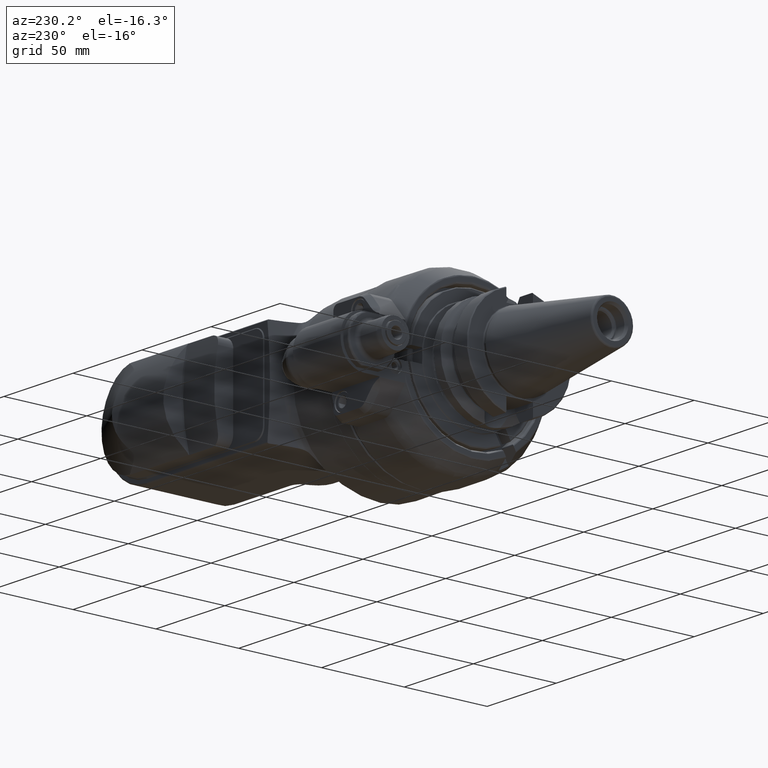
[diagram: clean part render]
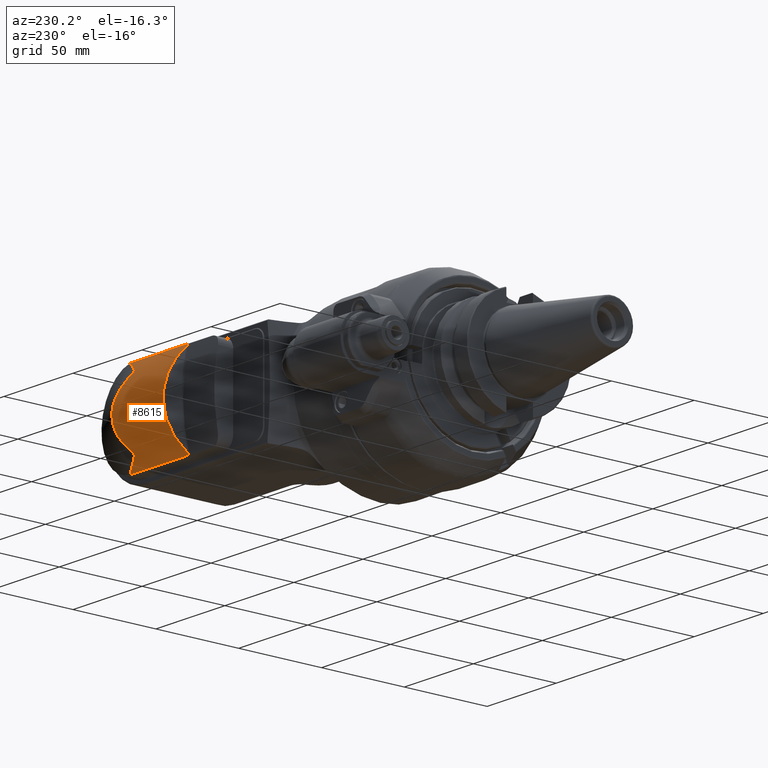
[diagram: same view with one face highlighted and labeled with its STEP entity id]
A machine part, auxiliary view. The second image highlights one B-rep face of the part: STEP entity #8615.
In plain terms, the highlighted cylindrical surface (partial cylindrical patch) has radius 40 mm, axis along (1, 0, 0).
Its self-contained STEP definition (entity closure, byte-faithful):
#179=B_SPLINE_CURVE_WITH_KNOTS('',3,(#16118,#16119,#16120,#16121),
 .UNSPECIFIED.,.F.,.F.,(4,4),(16.7550465828944,16.9730507254652),
 .UNSPECIFIED.);
#180=B_SPLINE_CURVE_WITH_KNOTS('',3,(#16125,#16126,#16127,#16128),
 .UNSPECIFIED.,.F.,.F.,(4,4),(-8.70452936411444,-8.48652536277408),
 .UNSPECIFIED.);
#181=B_SPLINE_CURVE_WITH_KNOTS('',3,(#16130,#16131,#16132,#16133,#16134,
#16135,#16136,#16137,#16138,#16139,#16140,#16141,#16142,#16143,#16144,#16145,
#16146,#16147,#16148,#16149,#16150,#16151,#16152,#16153,#16154,#16155,#16156,
#16157,#16158,#16159,#16160,#16161,#16162,#16163,#16164,#16165,#16166,#16167,
#16168,#16169,#16170,#16171,#16172,#16173,#16174,#16175,#16176,#16177,#16178,
#16179,#16180,#16181,#16182,#16183,#16184,#16185,#16186,#16187),
 .UNSPECIFIED.,.F.,.F.,(4,2,2,2,2,2,2,2,2,2,2,2,2,2,2,2,2,2,2,2,2,2,2,2,
2,2,2,2,4),(3.9431931606228,4.5236123705404,4.92438271164501,5.12476788219732,
5.22496046747347,5.27505676011154,5.32515305274962,5.36679206140051,5.40843107005141,
5.49170908735319,5.65826512195677,5.99137719116391,6.6576013295782,7.32382546799249,
7.99004960640678,8.65627374482107,9.32249788323537,9.98872202164966,10.3218340908568,
10.4883901254604,10.5716681427622,10.6133071514131,10.6549461600639,10.705042452702,
10.7551387453401,10.8553313306163,11.0557165011686,11.4564868422732,12.0369061556942),
 .UNSPECIFIED.);
#182=B_SPLINE_CURVE_WITH_KNOTS('',3,(#16194,#16195,#16196,#16197,#16198,
#16199,#16200,#16201,#16202,#16203,#16204,#16205,#16206,#16207,#16208,#16209,
#16210,#16211,#16212,#16213,#16214,#16215),.UNSPECIFIED.,.F.,.F.,(4,2,2,
2,2,2,2,2,2,2,4),(2.1263780289136,2.65267105689299,3.20723779839183,3.76180453989067,
4.31637128138951,4.87093802288835,5.42550476438719,5.98007150588603,6.53463824738487,
7.08920498888371,7.61549801685027),.UNSPECIFIED.);
#656=LINE('',#16190,#1247);
#657=LINE('',#16218,#1248);
#1247=VECTOR('',#11390,40.5000000002202);
#1248=VECTOR('',#11395,10.);
#1575=CYLINDRICAL_SURFACE('',#9462,40.);
#2007=FACE_OUTER_BOUND('',#2561,.T.);
#2561=EDGE_LOOP('',(#6875,#6876,#6877,#6878,#6879,#6880,#6881,#6882));
#3142=CIRCLE('',#9463,40.);
#3143=CIRCLE('',#9464,40.);
#3858=VERTEX_POINT('',#16081);
#3859=VERTEX_POINT('',#16082);
#3860=VERTEX_POINT('',#16117);
#3861=VERTEX_POINT('',#16123);
#3862=VERTEX_POINT('',#16189);
#3863=VERTEX_POINT('',#16191);
#3864=VERTEX_POINT('',#16193);
#3865=VERTEX_POINT('',#16216);
#4938=EDGE_CURVE('',#3859,#3860,#179,.T.);
#4941=EDGE_CURVE('',#3858,#3861,#180,.T.);
#4942=EDGE_CURVE('',#3859,#3858,#181,.F.);
#4943=EDGE_CURVE('',#3861,#3862,#656,.T.);
#4944=EDGE_CURVE('',#3863,#3862,#3142,.T.);
#4945=EDGE_CURVE('',#3864,#3863,#182,.F.);
#4946=EDGE_CURVE('',#3865,#3864,#3143,.T.);
#4947=EDGE_CURVE('',#3865,#3860,#657,.T.);
#6875=ORIENTED_EDGE('',*,*,#4943,.T.);
#6876=ORIENTED_EDGE('',*,*,#4944,.F.);
#6877=ORIENTED_EDGE('',*,*,#4945,.F.);
#6878=ORIENTED_EDGE('',*,*,#4946,.F.);
#6879=ORIENTED_EDGE('',*,*,#4947,.T.);
#6880=ORIENTED_EDGE('',*,*,#4938,.F.);
#6881=ORIENTED_EDGE('',*,*,#4942,.T.);
#6882=ORIENTED_EDGE('',*,*,#4941,.T.);
#8615=ADVANCED_FACE('',(#2007),#1575,.T.);
#9462=AXIS2_PLACEMENT_3D('',#16188,#11388,#11389);
#9463=AXIS2_PLACEMENT_3D('',#16192,#11391,#11392);
#9464=AXIS2_PLACEMENT_3D('',#16217,#11393,#11394);
#11388=DIRECTION('center_axis',(1.,0.,0.));
#11389=DIRECTION('ref_axis',(0.,0.999999999999999,-4.29244161440705E-8));
#11390=DIRECTION('',(-0.999999999999995,8.97852822208796E-8,3.27774321043998E-8));
#11391=DIRECTION('center_axis',(-1.,0.,0.));
#11392=DIRECTION('ref_axis',(0.,0.767164179100777,-0.641450794920881));
#11393=DIRECTION('center_axis',(-1.,0.,0.));
#11394=DIRECTION('ref_axis',(0.,0.737817728168692,0.674999999999993));
#11395=DIRECTION('',(1.,0.,0.));
#16081=CARTESIAN_POINT('',(2.18896539324615,68.5937762695566,-26.9111208743067));
#16082=CARTESIAN_POINT('',(2.18896644622182,68.5937761869924,26.911120814267));
#16117=CARTESIAN_POINT('',(3.81564127314516E-10,68.5127068010216,27.0000004439867));
#16118=CARTESIAN_POINT('Ctrl Pts',(2.18896635548575,68.5937759284862,26.9111208665591));
#16119=CARTESIAN_POINT('Ctrl Pts',(1.45780115041593,68.5396937445139,26.9705942731903));
#16120=CARTESIAN_POINT('Ctrl Pts',(0.726680475363099,68.5127091267474,27.));
#16121=CARTESIAN_POINT('Ctrl Pts',(0.,68.5127091267474,27.));
#16123=CARTESIAN_POINT('',(2.23961003524448E-10,68.5127067025425,-27.000000884992));
#16125=CARTESIAN_POINT('Ctrl Pts',(2.18896493424589,68.5937758233612,-26.9111209821635));
#16126=CARTESIAN_POINT('Ctrl Pts',(1.45780020299315,68.5396937093578,-26.9705943113842));
#16127=CARTESIAN_POINT('Ctrl Pts',(0.726680004542532,68.5127091267474,-27.));
#16128=CARTESIAN_POINT('Ctrl Pts',(3.46944695195361E-16,68.5127091267474,
-27.));
#16130=CARTESIAN_POINT('Ctrl Pts',(2.18896612134723,68.5937770253376,-26.9111196603671));
#16131=CARTESIAN_POINT('Ctrl Pts',(0.601241772103444,69.3927859227906,-26.0324608958525));
#16132=CARTESIAN_POINT('Ctrl Pts',(-0.977971653212619,70.1890225135725,
-25.073523948554));
#16133=CARTESIAN_POINT('Ctrl Pts',(-3.36903009873962,71.4107288201491,-23.4569743766932));
#16134=CARTESIAN_POINT('Ctrl Pts',(-4.26536609910178,71.8718505644755,-22.8041542132905));
#16135=CARTESIAN_POINT('Ctrl Pts',(-5.4386314402395,72.5092437077154,-21.8466836907894));
#16136=CARTESIAN_POINT('Ctrl Pts',(-5.79636464194105,72.7085656570735,-21.5379067556193));
#16137=CARTESIAN_POINT('Ctrl Pts',(-6.28038175775617,73.0152204346236,-21.047608942736));
#16138=CARTESIAN_POINT('Ctrl Pts',(-6.43111958109392,73.1167308141114,-20.8829033984885));
#16139=CARTESIAN_POINT('Ctrl Pts',(-6.63097736176368,73.2849014561486,-20.6047871683537));
#16140=CARTESIAN_POINT('Ctrl Pts',(-6.69279960726098,73.3432935635885,-20.5074189208315));
#16141=CARTESIAN_POINT('Ctrl Pts',(-6.79462514802099,73.4724782634303,-20.2895116971906));
#16142=CARTESIAN_POINT('Ctrl Pts',(-6.83561719503478,73.5430999225755,-20.1693347223506));
#16143=CARTESIAN_POINT('Ctrl Pts',(-6.85087976173719,73.6959920913905,-19.9049579081016));
#16144=CARTESIAN_POINT('Ctrl Pts',(-6.83277876494196,73.756058429178,-19.7997167791148));
#16145=CARTESIAN_POINT('Ctrl Pts',(-6.77578231094308,73.865680486962,-19.6060374998333));
#16146=CARTESIAN_POINT('Ctrl Pts',(-6.736619471688,73.9151910412585,-19.5176525703231));
#16147=CARTESIAN_POINT('Ctrl Pts',(-6.60451574716891,74.0559993377173,-19.2643260123753));
#16148=CARTESIAN_POINT('Ctrl Pts',(-6.49825321810167,74.1390348627589,-19.1122363251122));
#16149=CARTESIAN_POINT('Ctrl Pts',(-6.15702043868674,74.3831270770857,-18.658842049325));
#16150=CARTESIAN_POINT('Ctrl Pts',(-5.90338644790978,74.5337104149135,-18.3703679377792));
#16151=CARTESIAN_POINT('Ctrl Pts',(-5.10187070674305,74.9928294030515,-17.4635335214468));
#16152=CARTESIAN_POINT('Ctrl Pts',(-4.52293526492767,75.2975542547605,-16.823802155543));
#16153=CARTESIAN_POINT('Ctrl Pts',(-2.79719533928567,76.1977376637657,-14.7830773810914));
#16154=CARTESIAN_POINT('Ctrl Pts',(-1.62347581106337,76.79195432411,-13.215230391849));
#16155=CARTESIAN_POINT('Ctrl Pts',(0.317437309418983,77.7746228311929,-9.97009390437535));
#16156=CARTESIAN_POINT('Ctrl Pts',(1.16844165177964,78.2032988141375,-8.18219983470156));
#16157=CARTESIAN_POINT('Ctrl Pts',(2.38474519616809,78.8157653037312,-4.30729599150245));
#16158=CARTESIAN_POINT('Ctrl Pts',(2.75128869403787,79.,-2.22074712804763));
#16159=CARTESIAN_POINT('Ctrl Pts',(2.75128869403787,79.,2.22074712804764));
#16160=CARTESIAN_POINT('Ctrl Pts',(2.38474519616808,78.8157653037312,4.30729599150246));
#16161=CARTESIAN_POINT('Ctrl Pts',(1.16844165177962,78.2032988141375,8.18219983470157));
#16162=CARTESIAN_POINT('Ctrl Pts',(0.317437309418963,77.7746228311929,9.97009390437535));
#16163=CARTESIAN_POINT('Ctrl Pts',(-1.6234758110634,76.79195432411,13.215230391849));
#16164=CARTESIAN_POINT('Ctrl Pts',(-2.7971953392857,76.1977376637657,14.7830773810914));
#16165=CARTESIAN_POINT('Ctrl Pts',(-4.5229352649277,75.2975542547605,16.823802155543));
#16166=CARTESIAN_POINT('Ctrl Pts',(-5.10187070674307,74.9928294030515,17.4635335214468));
#16167=CARTESIAN_POINT('Ctrl Pts',(-5.9033864479098,74.5337104149135,18.3703679377792));
#16168=CARTESIAN_POINT('Ctrl Pts',(-6.15702043868667,74.3831270770857,18.658842049325));
#16169=CARTESIAN_POINT('Ctrl Pts',(-6.49825321810163,74.1390348627589,19.1122363251122));
#16170=CARTESIAN_POINT('Ctrl Pts',(-6.6045157471686,74.0559993377172,19.2643260123755));
#16171=CARTESIAN_POINT('Ctrl Pts',(-6.73661947168773,73.9151910412584,19.5176525703232));
#16172=CARTESIAN_POINT('Ctrl Pts',(-6.77578231094303,73.865680486962,19.6060374998334));
#16173=CARTESIAN_POINT('Ctrl Pts',(-6.83277876494188,73.7560584291779,19.7997167791148));
#16174=CARTESIAN_POINT('Ctrl Pts',(-6.85087976173719,73.6959920913905,19.9049579081016));
#16175=CARTESIAN_POINT('Ctrl Pts',(-6.83561719503478,73.5430999225755,20.1693347223506));
#16176=CARTESIAN_POINT('Ctrl Pts',(-6.79462514802085,73.4724782634303,20.2895116971905));
#16177=CARTESIAN_POINT('Ctrl Pts',(-6.69279960726082,73.3432935635885,20.5074189208314));
#16178=CARTESIAN_POINT('Ctrl Pts',(-6.63097736176362,73.2849014561486,20.6047871683537));
#16179=CARTESIAN_POINT('Ctrl Pts',(-6.43111958109387,73.1167308141114,20.8829033984885));
#16180=CARTESIAN_POINT('Ctrl Pts',(-6.28038175775627,73.0152204346236,21.0476089427361));
#16181=CARTESIAN_POINT('Ctrl Pts',(-5.79636464194112,72.7085656570735,21.5379067556194));
#16182=CARTESIAN_POINT('Ctrl Pts',(-5.4386314402395,72.5092437077154,21.8466836907894));
#16183=CARTESIAN_POINT('Ctrl Pts',(-4.26536609910178,71.8718505644755,22.8041542132905));
#16184=CARTESIAN_POINT('Ctrl Pts',(-3.36903009873963,71.4107288201491,23.4569743766932));
#16185=CARTESIAN_POINT('Ctrl Pts',(-0.977971400985274,70.1890223846974,
25.0735241190801));
#16186=CARTESIAN_POINT('Ctrl Pts',(0.601242335726401,69.3927856382856,26.0324612367581));
#16187=CARTESIAN_POINT('Ctrl Pts',(2.18896697075742,68.5937765978791,26.9111201304372));
#16188=CARTESIAN_POINT('Origin',(-13.1,39.,0.));
#16189=CARTESIAN_POINT('',(-40.5,68.51270912675,-27.));
#16190=CARTESIAN_POINT('',(2.2400676403E-10,68.51270549044,-27.00000132749));
#16191=CARTESIAN_POINT('',(-40.5,69.68656716403,-25.65803179684));
#16192=CARTESIAN_POINT('Origin',(-40.5,39.,0.));
#16193=CARTESIAN_POINT('',(-40.5,69.68656716415,25.65803179675));
#16194=CARTESIAN_POINT('Ctrl Pts',(-40.5000000000842,69.6865671640521,-25.6580317968101));
#16195=CARTESIAN_POINT('Ctrl Pts',(-39.7805961066877,70.7710416899176,-24.3610188131481));
#16196=CARTESIAN_POINT('Ctrl Pts',(-39.1267688557372,71.768208789152,-22.9996438990602));
#16197=CARTESIAN_POINT('Ctrl Pts',(-37.9319380085313,73.6042361419688,-20.1392198942798));
#16198=CARTESIAN_POINT('Ctrl Pts',(-37.355018565484,74.4993938425121,-18.5299704327926));
#16199=CARTESIAN_POINT('Ctrl Pts',(-36.3383906349042,76.087355978966,-15.1028074833141));
#16200=CARTESIAN_POINT('Ctrl Pts',(-35.8986643778306,76.7799845861317,-13.2848177996116));
#16201=CARTESIAN_POINT('Ctrl Pts',(-35.1939667515053,77.8943922112106,-9.54148156623352));
#16202=CARTESIAN_POINT('Ctrl Pts',(-34.9285560837867,78.3167355011833,-7.61377205323288));
#16203=CARTESIAN_POINT('Ctrl Pts',(-34.5815619771257,78.8695693136135,-3.76731444051172));
#16204=CARTESIAN_POINT('Ctrl Pts',(-34.5,79.,-1.84855580499614));
#16205=CARTESIAN_POINT('Ctrl Pts',(-34.5,79.,1.84855580499613));
#16206=CARTESIAN_POINT('Ctrl Pts',(-34.5815619771257,78.8695693136135,3.76731444051168));
#16207=CARTESIAN_POINT('Ctrl Pts',(-34.9285560837867,78.3167355011833,7.61377205323284));
#16208=CARTESIAN_POINT('Ctrl Pts',(-35.1939667515053,77.8943922112106,9.54148156623352));
#16209=CARTESIAN_POINT('Ctrl Pts',(-35.8986643778306,76.7799845861317,13.2848177996116));
#16210=CARTESIAN_POINT('Ctrl Pts',(-36.3383906349042,76.087355978966,15.1028074833141));
#16211=CARTESIAN_POINT('Ctrl Pts',(-37.355018565484,74.4993938425121,18.5299704327926));
#16212=CARTESIAN_POINT('Ctrl Pts',(-37.9319380085313,73.6042361419688,20.1392198942798));
#16213=CARTESIAN_POINT('Ctrl Pts',(-39.126768855723,71.7682087891738,22.9996438990262));
#16214=CARTESIAN_POINT('Ctrl Pts',(-39.7805961066558,70.7710416899663,24.3610188130818));
#16215=CARTESIAN_POINT('Ctrl Pts',(-40.5000000000316,69.6865671641315,25.6580317967152));
#16216=CARTESIAN_POINT('',(-40.5,68.51270912675,27.));
#16217=CARTESIAN_POINT('Origin',(-40.5,39.,0.));
#16218=CARTESIAN_POINT('',(-13.1,68.5127091267474,27.));